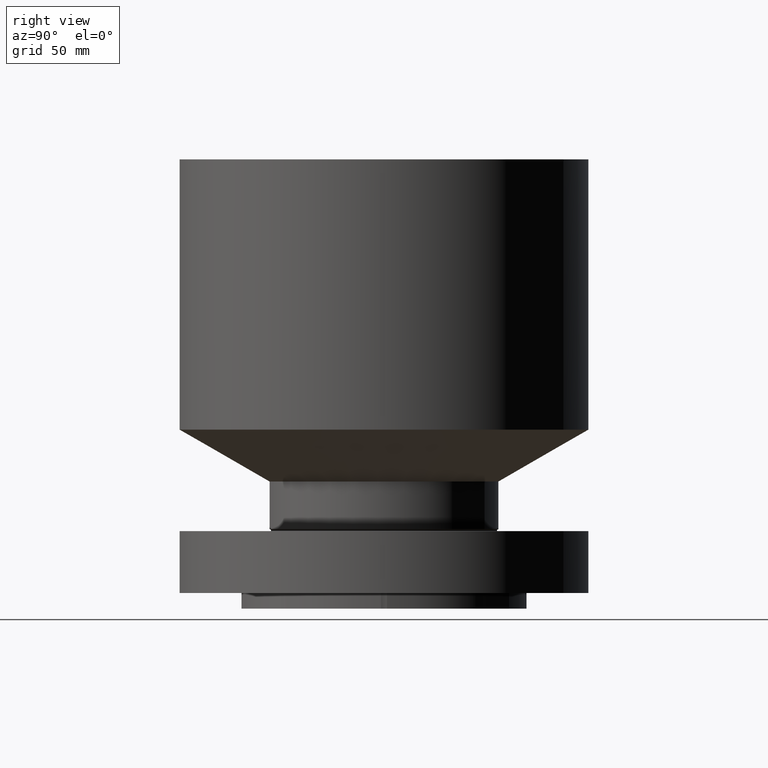
[diagram: clean part render]
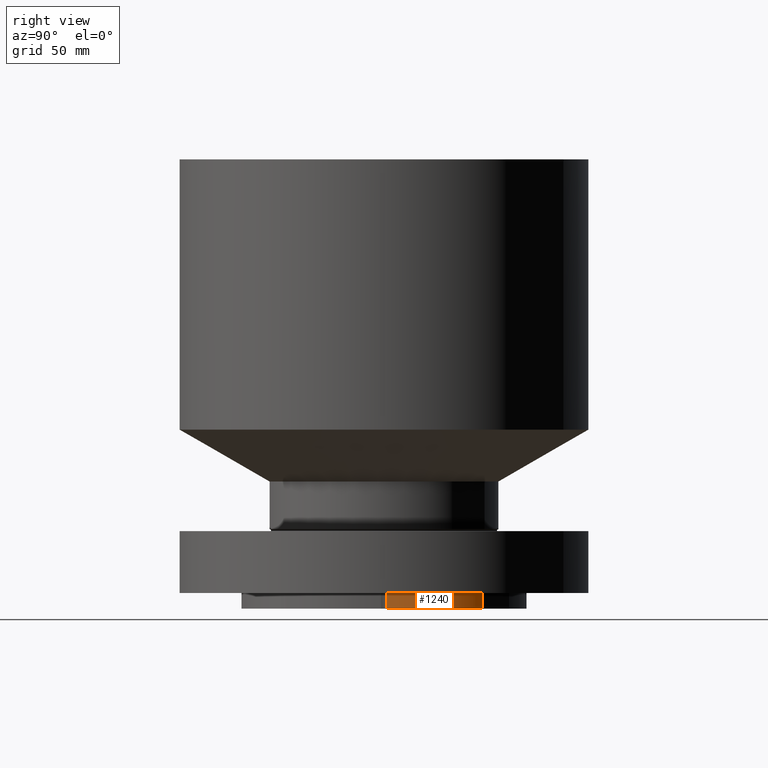
[diagram: same view with one face highlighted and labeled with its STEP entity id]
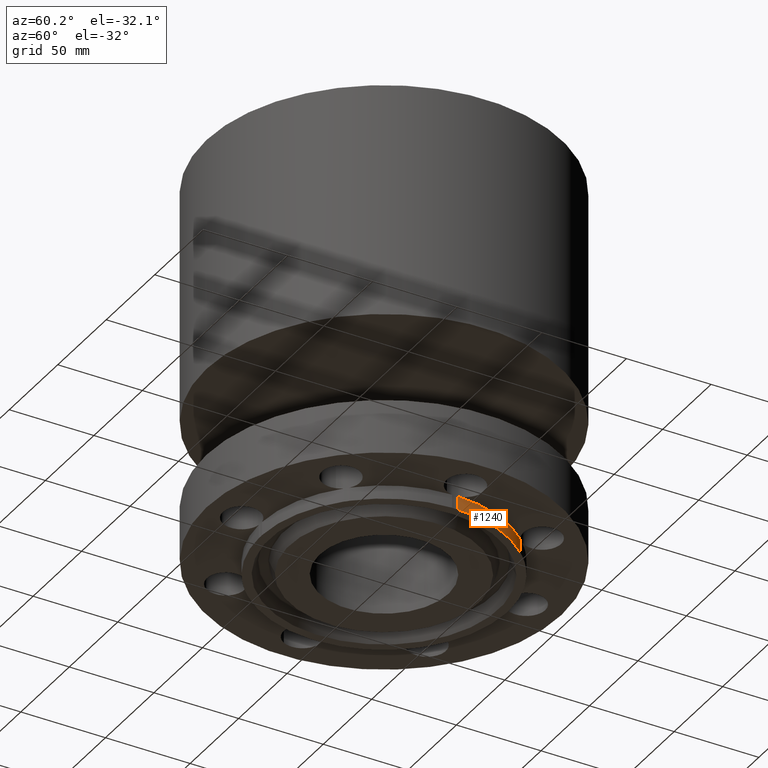
[diagram: same view with one face highlighted and labeled with its STEP entity id]
A machine part, right view. The second image highlights one B-rep face of the part: STEP entity #1240.
A second angle (auxiliary view) of the same face is appended — the face is thin or edge-on in the first view.
In plain terms, the highlighted cylindrical surface (partial cylindrical patch) has radius 73.025 mm, axis along (0, 0, -1).
Its self-contained STEP definition (entity closure, byte-faithful):
#184=AXIS2_PLACEMENT_3D('Circle Axis2P3D',#182,#183,$) ;
#1027=AXIS2_PLACEMENT_3D('Circle Axis2P3D',#1025,#1026,$) ;
#1079=AXIS2_PLACEMENT_3D('Cylinder Axis2P3D',#1076,#1077,#1078) ;
#179=CARTESIAN_POINT('Vertex',(2.87433912388,0.0616409036851,5.59482469102E-016)) ;
#182=CARTESIAN_POINT('Axis2P3D Location',(0.,0.,0.)) ;
#186=CARTESIAN_POINT('Vertex',(2.07605138692,1.98887798493,3.46398325597E-016)) ;
#1022=CARTESIAN_POINT('Vertex',(2.07605138692,1.98887798493,-0.313000000001)) ;
#1025=CARTESIAN_POINT('Axis2P3D Location',(0.,0.,-0.313000000001)) ;
#1029=CARTESIAN_POINT('Vertex',(2.87433912388,0.0616409036851,-0.313000000001)) ;
#1076=CARTESIAN_POINT('Axis2P3D Location',(0.,0.,4.21850000002)) ;
#1224=CARTESIAN_POINT('Line Origine',(2.87433912388,0.0616409036851,-0.156500000001)) ;
#1229=CARTESIAN_POINT('Line Origine',(2.07605138692,1.98887798493,-0.156500000001)) ;
#183=DIRECTION('Axis2P3D Direction',(0.,0.,-0.0393700787402)) ;
#1026=DIRECTION('Axis2P3D Direction',(0.,0.,-0.0393700787402)) ;
#1077=DIRECTION('Axis2P3D Direction',(0.,0.,-0.0393700787402)) ;
#1078=DIRECTION('Axis2P3D XDirection',(0.0284293240248,0.0272355766508,0.)) ;
#1225=DIRECTION('Vector Direction',(0.,0.,-0.0393700787402)) ;
#1230=DIRECTION('Vector Direction',(0.,0.,-0.0393700787402)) ;
#1226=VECTOR('Line Direction',#1225,0.0393700787402) ;
#1231=VECTOR('Line Direction',#1230,0.0393700787402) ;
#1235=ORIENTED_EDGE('',*,*,#188,.T.) ;
#1236=ORIENTED_EDGE('',*,*,#1228,.T.) ;
#1237=ORIENTED_EDGE('',*,*,#1031,.F.) ;
#1238=ORIENTED_EDGE('',*,*,#1233,.F.) ;
#1240=ADVANCED_FACE('PartBody',(#1239),#1080,.T.) ;
#185=CIRCLE('generated circle',#184,2.87500000001) ;
#1028=CIRCLE('generated circle',#1027,2.87500000001) ;
#1080=CYLINDRICAL_SURFACE('generated cylinder',#1079,2.87500000001) ;
#188=EDGE_CURVE('',#187,#180,#185,.T.) ;
#1031=EDGE_CURVE('',#1023,#1030,#1028,.T.) ;
#1228=EDGE_CURVE('',#180,#1030,#1227,.T.) ;
#1233=EDGE_CURVE('',#187,#1023,#1232,.T.) ;
#1234=EDGE_LOOP('',(#1235,#1236,#1237,#1238)) ;
#1239=FACE_OUTER_BOUND('',#1234,.T.) ;
#1227=LINE('Line',#1224,#1226) ;
#1232=LINE('Line',#1229,#1231) ;
#180=VERTEX_POINT('',#179) ;
#187=VERTEX_POINT('',#186) ;
#1023=VERTEX_POINT('',#1022) ;
#1030=VERTEX_POINT('',#1029) ;